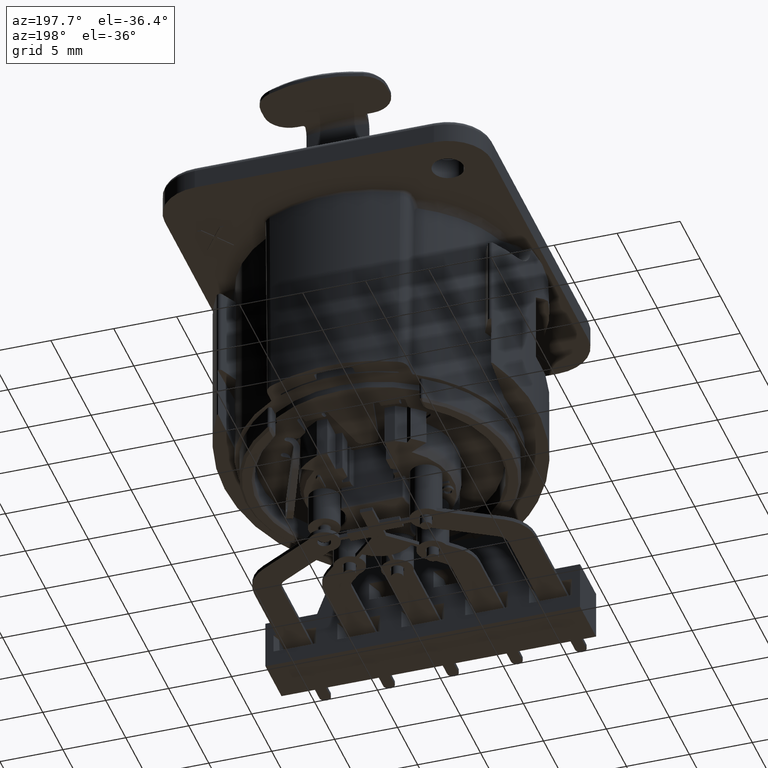
[diagram: clean part render]
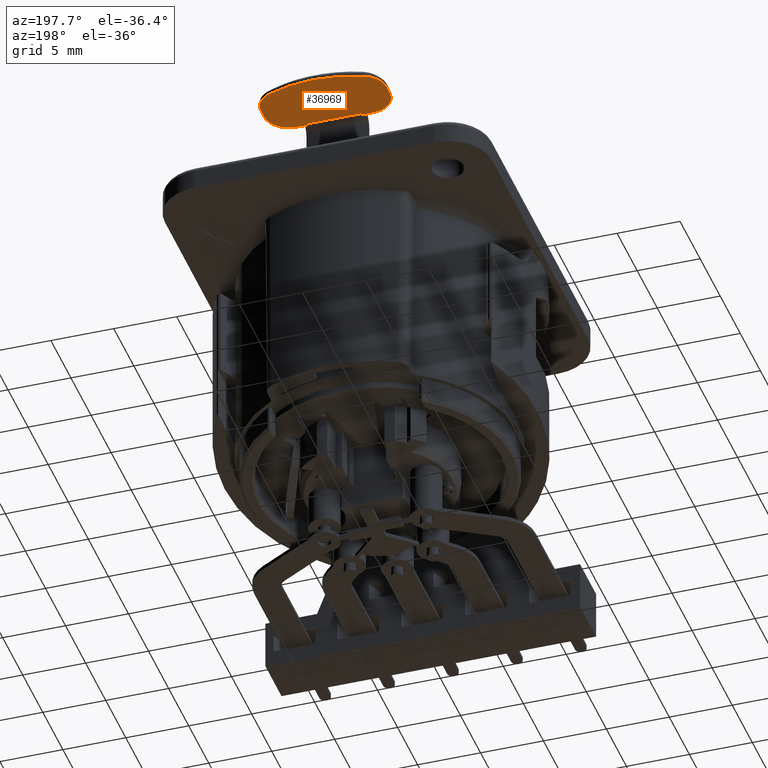
[diagram: same view with one face highlighted and labeled with its STEP entity id]
A machine part, auxiliary view. The second image highlights one B-rep face of the part: STEP entity #36969.
In plain terms, the highlighted planar face has unit normal (0, 0, -1).
Its self-contained STEP definition (entity closure, byte-faithful):
#8924=CARTESIAN_POINT('',(2.279513357383E0,1.123455470593E1,7.849999999546E0));
#8925=CARTESIAN_POINT('',(2.252935079684E0,1.125123058699E1,7.849999999546E0));
#8926=CARTESIAN_POINT('',(2.202879226724E0,1.128572114592E1,7.850000000212E0));
#8927=CARTESIAN_POINT('',(2.134358394568E0,1.134089433669E1,7.849999999939E0));
#8928=CARTESIAN_POINT('',(2.098534217243E0,1.137992418434E1,7.85E0));
#8929=CARTESIAN_POINT('',(2.082629466337E0,1.140000469226E1,7.85E0));
#8931=CARTESIAN_POINT('',(-2.082629466337E0,1.140000469226E1,7.85E0));
#8932=CARTESIAN_POINT('',(-2.098534217241E0,1.137992418434E1,7.85E0));
#8933=CARTESIAN_POINT('',(-2.134358393901E0,1.134089433715E1,7.849999999941E0));
#8934=CARTESIAN_POINT('',(-2.202879229041E0,1.128572114431E1,7.850000000207E0));
#8935=CARTESIAN_POINT('',(-2.252935074713E0,1.125123059046E1,7.849999999556E0));
#8936=CARTESIAN_POINT('',(-2.279513352413E0,1.123455470939E1,7.849999999556E0));
#8938=CARTESIAN_POINT('',(2.082629466337E0,1.140000469226E1,7.85E0));
#8939=CARTESIAN_POINT('',(6.946195074181E-1,1.143373097890E1,7.850000000013E0));
#8940=CARTESIAN_POINT('',(-6.946195080847E-1,1.143373100634E1,
7.850000000013E0));
#8941=CARTESIAN_POINT('',(-2.082629466337E0,1.140000469226E1,7.85E0));
#8943=CARTESIAN_POINT('',(2.279513357383E0,1.123455470593E1,7.849999999546E0));
#8944=CARTESIAN_POINT('',(2.394622438384E0,1.123455470593E1,7.849999999546E0));
#8945=CARTESIAN_POINT('',(2.510486035413E0,1.123464233114E1,7.853799063657E0));
#8946=CARTESIAN_POINT('',(2.625595116414E0,1.123464233114E1,7.853799063657E0));
#8948=DIRECTION('',(9.999484965029E-1,-2.335984245506E-4,-1.014641677649E-2));
#8949=VECTOR('',#8948,3.744241677397E-1);
#8950=CARTESIAN_POINT('',(2.625595116414E0,1.123464233114E1,7.853799063657E0));
#8951=LINE('',#8950,#8949);
#8952=CARTESIAN_POINT('',(3.E0,1.323455486625E1,7.85E0));
#8953=DIRECTION('',(0.E0,0.E0,1.E0));
#8954=DIRECTION('',(0.E0,-1.E0,0.E0));
#8955=AXIS2_PLACEMENT_3D('',#8952,#8953,#8954);
#8957=DIRECTION('',(0.E0,1.E0,0.E0));
#8958=VECTOR('',#8957,8.161984870957E-1);
#8959=CARTESIAN_POINT('',(5.E0,1.323455486625E1,7.85E0));
#8960=LINE('',#8959,#8958);
#8961=CARTESIAN_POINT('',(3.E0,1.405075335334E1,7.85E0));
#8962=DIRECTION('',(0.E0,0.E0,1.E0));
#8963=DIRECTION('',(1.E0,0.E0,0.E0));
#8964=AXIS2_PLACEMENT_3D('',#8961,#8962,#8963);
#8966=CARTESIAN_POINT('',(0.E0,6.634554866246E0,7.85E0));
#8967=DIRECTION('',(0.E0,0.E0,1.E0));
#8968=DIRECTION('',(3.75E-1,9.270248108870E-1,0.E0));
#8969=AXIS2_PLACEMENT_3D('',#8966,#8967,#8968);
#8971=CARTESIAN_POINT('',(-3.E0,1.405075335334E1,7.85E0));
#8972=DIRECTION('',(0.E0,0.E0,1.E0));
#8973=DIRECTION('',(-3.75E-1,9.270248108870E-1,0.E0));
#8974=AXIS2_PLACEMENT_3D('',#8971,#8972,#8973);
#8976=DIRECTION('',(0.E0,-1.E0,0.E0));
#8977=VECTOR('',#8976,8.161984870957E-1);
#8978=CARTESIAN_POINT('',(-5.E0,1.405075335334E1,7.85E0));
#8979=LINE('',#8978,#8977);
#8980=CARTESIAN_POINT('',(-3.E0,1.323455486625E1,7.85E0));
#8981=DIRECTION('',(0.E0,0.E0,1.E0));
#8982=DIRECTION('',(-1.E0,0.E0,0.E0));
#8983=AXIS2_PLACEMENT_3D('',#8980,#8981,#8982);
#8985=DIRECTION('',(9.999485074725E-1,1.993487937737E-4,1.014606641287E-2));
#8986=VECTOR('',#8985,3.744291813660E-1);
#8987=CARTESIAN_POINT('',(-3.E0,1.123455486625E1,7.85E0));
#8988=LINE('',#8987,#8986);
#8989=CARTESIAN_POINT('',(-2.625590098939E0,1.123462950825E1,7.853798983341E0));
#8990=CARTESIAN_POINT('',(-2.510481894867E0,1.123462950825E1,7.853798983341E0));
#8991=CARTESIAN_POINT('',(-2.394621556485E0,1.123455470939E1,7.849999999556E0));
#8992=CARTESIAN_POINT('',(-2.279513352413E0,1.123455470939E1,7.849999999556E0));
#12129=CARTESIAN_POINT('',(-2.625590098939E0,1.123462950825E1,
7.853798983341E0));
#12178=CARTESIAN_POINT('',(2.625595116414E0,1.123464233114E1,7.853799063657E0));
#19649=CARTESIAN_POINT('',(3.E0,1.123455486625E1,7.85E0));
#19650=CARTESIAN_POINT('',(5.E0,1.323455486625E1,7.85E0));
#19651=VERTEX_POINT('',#19649);
#19652=VERTEX_POINT('',#19650);
#19653=CARTESIAN_POINT('',(5.E0,1.405075335334E1,7.85E0));
#19654=VERTEX_POINT('',#19653);
#19655=CARTESIAN_POINT('',(3.75E0,1.590480297512E1,7.85E0));
#19656=VERTEX_POINT('',#19655);
#19657=CARTESIAN_POINT('',(-3.75E0,1.590480297512E1,7.85E0));
#19658=VERTEX_POINT('',#19657);
#19659=CARTESIAN_POINT('',(-5.E0,1.405075335334E1,7.85E0));
#19660=VERTEX_POINT('',#19659);
#19661=CARTESIAN_POINT('',(-5.E0,1.323455486625E1,7.85E0));
#19662=VERTEX_POINT('',#19661);
#19663=CARTESIAN_POINT('',(-3.E0,1.123455486625E1,7.85E0));
#19664=VERTEX_POINT('',#19663);
#19665=VERTEX_POINT('',#8924);
#19666=VERTEX_POINT('',#8929);
#19667=VERTEX_POINT('',#8931);
#19668=VERTEX_POINT('',#8936);
#19672=VERTEX_POINT('',#12178);
#19676=VERTEX_POINT('',#12129);
#36939=CARTESIAN_POINT('',(0.E0,1.215E1,7.85E0));
#36940=DIRECTION('',(0.E0,0.E0,-1.E0));
#36941=DIRECTION('',(0.E0,1.E0,0.E0));
#36942=AXIS2_PLACEMENT_3D('',#36939,#36940,#36941);
#36943=PLANE('',#36942);
#36944=ORIENTED_EDGE('',*,*,#36932,.F.);
#36945=ORIENTED_EDGE('',*,*,#36930,.F.);
#36946=ORIENTED_EDGE('',*,*,#36928,.T.);
#36948=ORIENTED_EDGE('',*,*,#36947,.T.);
#36950=ORIENTED_EDGE('',*,*,#36949,.T.);
#36952=ORIENTED_EDGE('',*,*,#36951,.T.);
#36954=ORIENTED_EDGE('',*,*,#36953,.T.);
#36956=ORIENTED_EDGE('',*,*,#36955,.T.);
#36958=ORIENTED_EDGE('',*,*,#36957,.T.);
#36960=ORIENTED_EDGE('',*,*,#36959,.T.);
#36962=ORIENTED_EDGE('',*,*,#36961,.T.);
#36964=ORIENTED_EDGE('',*,*,#36963,.T.);
#36965=ORIENTED_EDGE('',*,*,#36918,.T.);
#36966=ORIENTED_EDGE('',*,*,#36934,.F.);
#36967=EDGE_LOOP('',(#36944,#36945,#36946,#36948,#36950,#36952,#36954,#36956,
#36958,#36960,#36962,#36964,#36965,#36966));
#36968=FACE_OUTER_BOUND('',#36967,.F.);
#36969=ADVANCED_FACE('',(#36968),#36943,.T.);
#8930=B_SPLINE_CURVE_WITH_KNOTS('',3,(#8924,#8925,#8926,#8927,#8928,#8929),
.UNSPECIFIED.,.F.,.F.,(4,1,1,4),(0.E0,3.333333333333E-1,6.666666666667E-1,1.E0),
.UNSPECIFIED.);
#8937=B_SPLINE_CURVE_WITH_KNOTS('',3,(#8931,#8932,#8933,#8934,#8935,#8936),
.UNSPECIFIED.,.F.,.F.,(4,1,1,4),(0.E0,3.333333333333E-1,6.666666666667E-1,1.E0),
.UNSPECIFIED.);
#8942=B_SPLINE_CURVE_WITH_KNOTS('',3,(#8938,#8939,#8940,#8941),.UNSPECIFIED.,
.F.,.F.,(4,4),(0.E0,1.E0),.UNSPECIFIED.);
#8947=B_SPLINE_CURVE_WITH_KNOTS('',3,(#8943,#8944,#8945,#8946),.UNSPECIFIED.,
.F.,.F.,(4,4),(0.E0,1.E0),.UNSPECIFIED.);
#8956=CIRCLE('',#8955,2.E0);
#8965=CIRCLE('',#8964,2.E0);
#8970=CIRCLE('',#8969,1.E1);
#8975=CIRCLE('',#8974,2.E0);
#8984=CIRCLE('',#8983,2.E0);
#8993=B_SPLINE_CURVE_WITH_KNOTS('',3,(#8989,#8990,#8991,#8992),.UNSPECIFIED.,
.F.,.F.,(4,4),(0.E0,1.E0),.UNSPECIFIED.);
#36918=EDGE_CURVE('',#19676,#19668,#8993,.T.);
#36928=EDGE_CURVE('',#19665,#19672,#8947,.T.);
#36930=EDGE_CURVE('',#19665,#19666,#8930,.T.);
#36932=EDGE_CURVE('',#19666,#19667,#8942,.T.);
#36934=EDGE_CURVE('',#19667,#19668,#8937,.T.);
#36947=EDGE_CURVE('',#19672,#19651,#8951,.T.);
#36949=EDGE_CURVE('',#19651,#19652,#8956,.T.);
#36951=EDGE_CURVE('',#19652,#19654,#8960,.T.);
#36953=EDGE_CURVE('',#19654,#19656,#8965,.T.);
#36955=EDGE_CURVE('',#19656,#19658,#8970,.T.);
#36957=EDGE_CURVE('',#19658,#19660,#8975,.T.);
#36959=EDGE_CURVE('',#19660,#19662,#8979,.T.);
#36961=EDGE_CURVE('',#19662,#19664,#8984,.T.);
#36963=EDGE_CURVE('',#19664,#19676,#8988,.T.);